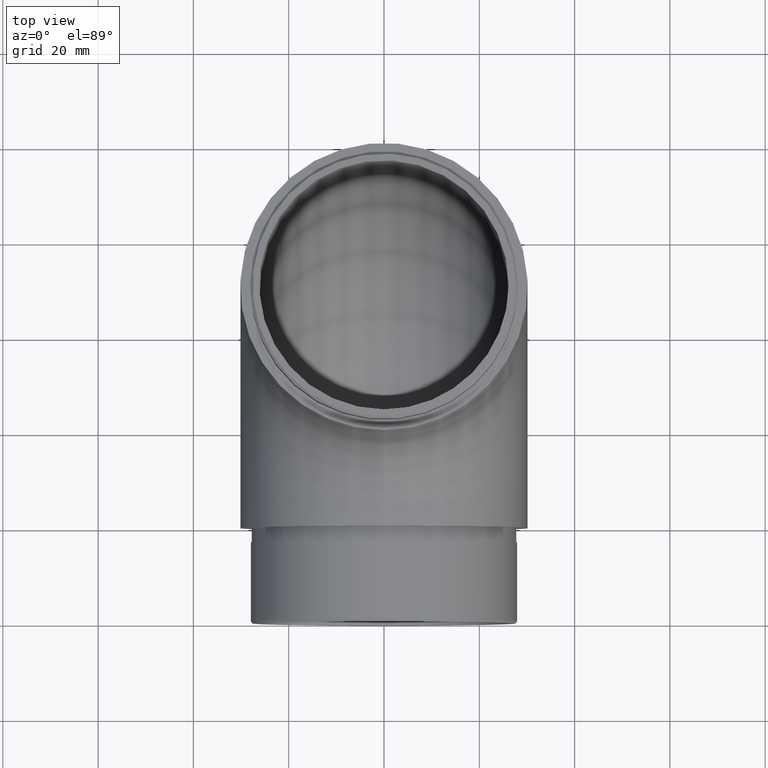
[diagram: clean part render]
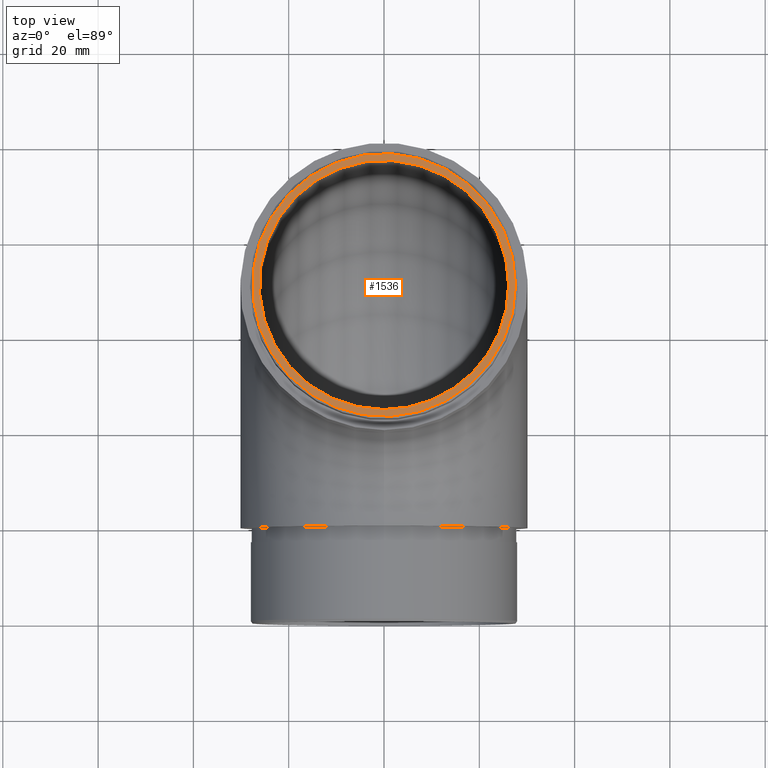
[diagram: same view with one face highlighted and labeled with its STEP entity id]
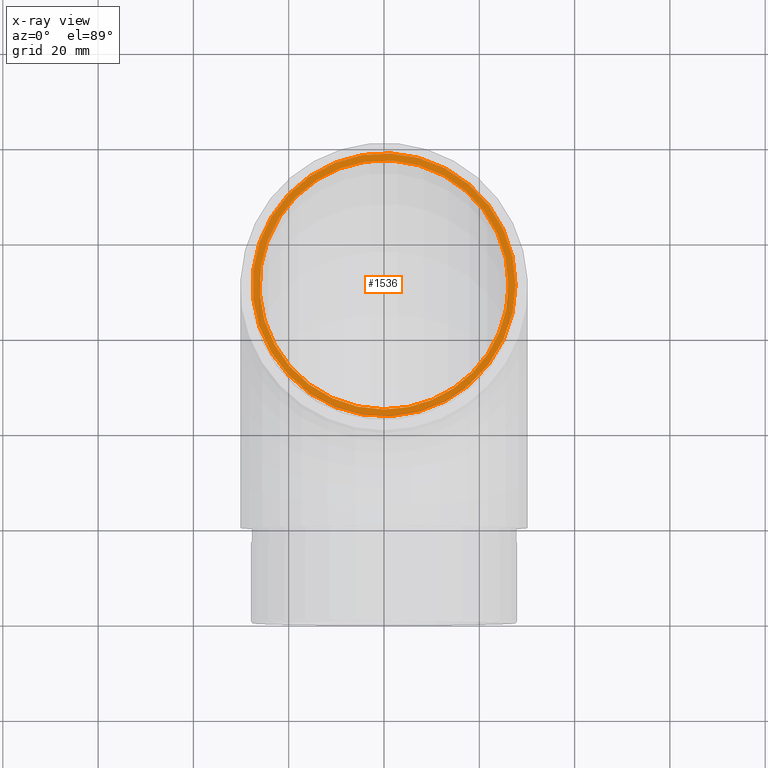
[diagram: x-ray of the same camera — body ghosted, the highlighted face saturated]
A machine part, top view. The second image highlights one B-rep face of the part: STEP entity #1536.
The next image is the same camera in x-ray: the body ghosted, the highlighted face saturated — about 0% of this face is hidden behind the body in this view.
In plain terms, the highlighted planar face has unit normal (0, 0, 1).
Its self-contained STEP definition (entity closure, byte-faithful):
#142 = EDGE_CURVE ( 'NONE', #4374, #4374, #7025, .T. ) ;
#171 = FACE_OUTER_BOUND ( 'NONE', #7388, .T. ) ;
#657 = DIRECTION ( 'NONE',  ( 0.0000000000000000000, 0.0000000000000000000, 1.000000000000000000 ) ) ;
#867 = EDGE_CURVE ( 'NONE', #7772, #7772, #1670, .T. ) ;
#1536 = ADVANCED_FACE ( 'NONE', ( #171, #11308 ), #10695, .T. ) ;
#1544 = CARTESIAN_POINT ( 'NONE',  ( 0.0000000000000000000, 49.84999999999999400, 100.0000000000000000 ) ) ;
#1670 = CIRCLE ( 'NONE', #4727, 26.14999999999999500 ) ;
#1764 = CARTESIAN_POINT ( 'NONE',  ( 26.14999999999999500, 49.84999999999999400, 100.0000000000000000 ) ) ;
#2334 = DIRECTION ( 'NONE',  ( 1.000000000000000000, 0.0000000000000000000, -0.0000000000000000000 ) ) ;
#3126 = CARTESIAN_POINT ( 'NONE',  ( 0.0000000000000000000, 49.84999999999999400, 100.0000000000000000 ) ) ;
#4374 = VERTEX_POINT ( 'NONE', #10328 ) ;
#4727 = AXIS2_PLACEMENT_3D ( 'NONE', #11839, #9841, #5125 ) ;
#5125 = DIRECTION ( 'NONE',  ( 1.000000000000000000, 0.0000000000000000000, 0.0000000000000000000 ) ) ;
#6508 = EDGE_LOOP ( 'NONE', ( #11900 ) ) ;
#7025 = CIRCLE ( 'NONE', #8575, 27.59999999999998700 ) ;
#7388 = EDGE_LOOP ( 'NONE', ( #11998 ) ) ;
#7772 = VERTEX_POINT ( 'NONE', #1764 ) ;
#7984 = DIRECTION ( 'NONE',  ( 0.0000000000000000000, 0.0000000000000000000, 1.000000000000000000 ) ) ;
#8575 = AXIS2_PLACEMENT_3D ( 'NONE', #1544, #657, #11994 ) ;
#9138 = AXIS2_PLACEMENT_3D ( 'NONE', #3126, #7984, #2334 ) ;
#9841 = DIRECTION ( 'NONE',  ( 0.0000000000000000000, 0.0000000000000000000, 1.000000000000000000 ) ) ;
#10328 = CARTESIAN_POINT ( 'NONE',  ( 27.59999999999998700, 49.84999999999999400, 100.0000000000000000 ) ) ;
#10695 = PLANE ( 'NONE',  #9138 ) ;
#11308 = FACE_BOUND ( 'NONE', #6508, .T. ) ;
#11839 = CARTESIAN_POINT ( 'NONE',  ( 0.0000000000000000000, 49.84999999999999400, 100.0000000000000000 ) ) ;
#11900 = ORIENTED_EDGE ( 'NONE', *, *, #867, .F. ) ;
#11994 = DIRECTION ( 'NONE',  ( 1.000000000000000000, 0.0000000000000000000, 0.0000000000000000000 ) ) ;
#11998 = ORIENTED_EDGE ( 'NONE', *, *, #142, .T. ) ;